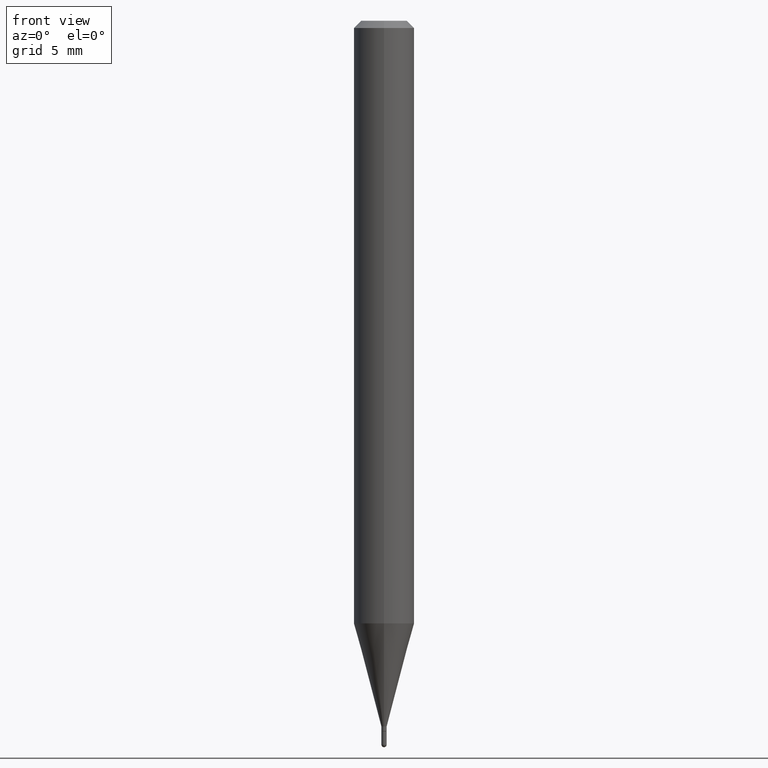
[diagram: clean part render]
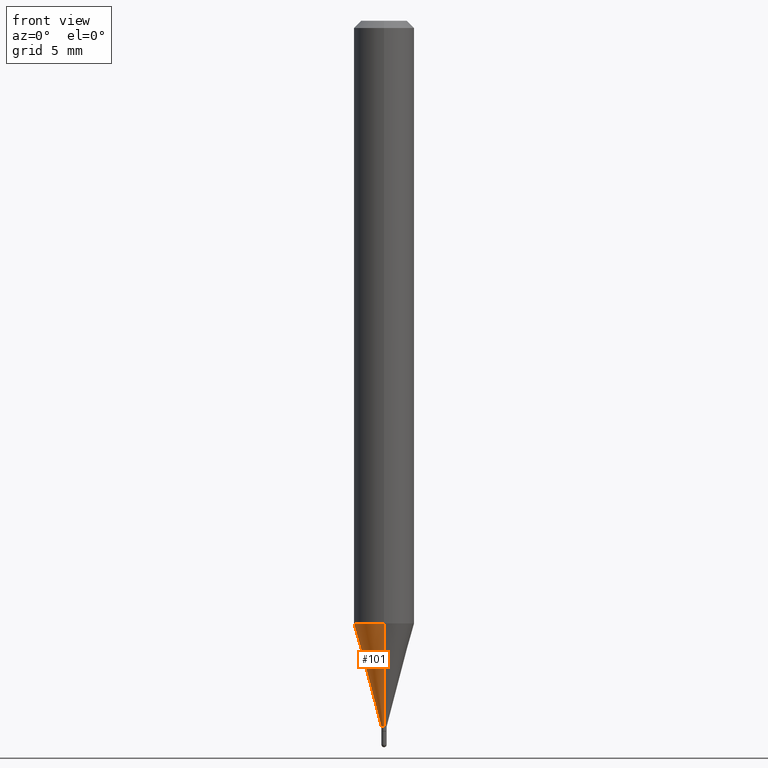
[diagram: same view with one face highlighted and labeled with its STEP entity id]
A machine part, front view. The second image highlights one B-rep face of the part: STEP entity #101.
In plain terms, the highlighted conical surface has half-angle 15 deg.
Its self-contained STEP definition (entity closure, byte-faithful):
#6 = VERTEX_POINT ( 'NONE', #237 ) ;
#9 = DIRECTION ( 'NONE',  ( -2.445479387329821699E-29, 3.491466186041715092E-15, 1.000000000000000000 ) ) ;
#28 = DIRECTION ( 'NONE',  ( -2.445479387329821699E-29, 3.491466186041715092E-15, 1.000000000000000000 ) ) ;
#45 = CARTESIAN_POINT ( 'NONE',  ( 4.440892098500928887E-16, 0.06249999999999563544, -1.244273103968574823 ) ) ;
#47 = DIRECTION ( 'NONE',  ( 1.839019923739600315E-15, 0.2588190451025249583, 0.9659258262890670910 ) ) ;
#48 = AXIS2_PLACEMENT_3D ( 'NONE', #512, #124, #466 ) ;
#50 = CARTESIAN_POINT ( 'NONE',  ( 3.563063467339550855E-29, -5.087066233062778433E-15, -1.457000000000000073 ) ) ;
#51 = EDGE_CURVE ( 'NONE', #6, #191, #431, .T. ) ;
#66 = ORIENTED_EDGE ( 'NONE', *, *, #307, .T. ) ;
#88 = AXIS2_PLACEMENT_3D ( 'NONE', #217, #28, #367 ) ;
#92 = EDGE_CURVE ( 'NONE', #266, #144, #393, .T. ) ;
#101 = ADVANCED_FACE ( 'NONE', ( #277 ), #298, .T. ) ;
#113 = CARTESIAN_POINT ( 'NONE',  ( 2.415845301584669169E-16, 0.005499999999994836276, -1.457000000000000073 ) ) ;
#124 = DIRECTION ( 'NONE',  ( -2.445479387329821699E-29, 3.491466186041715092E-15, 1.000000000000000000 ) ) ;
#144 = VERTEX_POINT ( 'NONE', #45 ) ;
#160 = CARTESIAN_POINT ( 'NONE',  ( -4.364351673553611504E-16, -0.06250000000000434375, -1.244273103968574157 ) ) ;
#191 = VERTEX_POINT ( 'NONE', #160 ) ;
#195 = CARTESIAN_POINT ( 'NONE',  ( -3.840629472723830084E-17, -0.005500000000005010430, -1.457000000000000073 ) ) ;
#217 = CARTESIAN_POINT ( 'NONE',  ( 3.563063467339550855E-29, -5.087066233062778433E-15, -1.457000000000000073 ) ) ;
#224 = ORIENTED_EDGE ( 'NONE', *, *, #51, .T. ) ;
#226 = ORIENTED_EDGE ( 'NONE', *, *, #92, .F. ) ;
#237 = CARTESIAN_POINT ( 'NONE',  ( -3.840629472723830084E-17, -0.005500000000005010430, -1.457000000000000073 ) ) ;
#242 = CIRCLE ( 'NONE', #88, 0.005499999999999923353 ) ;
#266 = VERTEX_POINT ( 'NONE', #113 ) ;
#275 = DIRECTION ( 'NONE',  ( -1.807323732225330139E-15, -0.2588190451025181860, 0.9659258262890689783 ) ) ;
#277 = FACE_OUTER_BOUND ( 'NONE', #302, .T. ) ;
#298 = CONICAL_SURFACE ( 'NONE', #348, 0.005499999999999923353, 0.2617993877991502960 ) ;
#301 = EDGE_CURVE ( 'NONE', #144, #191, #389, .T. ) ;
#302 = EDGE_LOOP ( 'NONE', ( #226, #66, #224, #387 ) ) ;
#307 = EDGE_CURVE ( 'NONE', #266, #6, #242, .T. ) ;
#321 = VECTOR ( 'NONE', #47, 39.37007874015748143 ) ;
#348 = AXIS2_PLACEMENT_3D ( 'NONE', #50, #9, #479 ) ;
#355 = VECTOR ( 'NONE', #275, 39.37007874015748143 ) ;
#367 = DIRECTION ( 'NONE',  ( -6.982962677686265922E-15, -1.000000000000000000, 0.000000000000000000 ) ) ;
#387 = ORIENTED_EDGE ( 'NONE', *, *, #301, .F. ) ;
#389 = CIRCLE ( 'NONE', #48, 0.06250000000000000000 ) ;
#393 = LINE ( 'NONE', #476, #321 ) ;
#431 = LINE ( 'NONE', #195, #355 ) ;
#466 = DIRECTION ( 'NONE',  ( -6.982962677686265922E-15, -1.000000000000000000, 4.370956789862821150E-15 ) ) ;
#476 = CARTESIAN_POINT ( 'NONE',  ( 3.907985046684058761E-17, 0.005499999999994836276, -1.457000000000000073 ) ) ;
#479 = DIRECTION ( 'NONE',  ( -6.982962677686265922E-15, -1.000000000000000000, 0.000000000000000000 ) ) ;
#512 = CARTESIAN_POINT ( 'NONE',  ( 3.042844227964045116E-29, -4.344337468707445458E-15, -1.244273103968574601 ) ) ;